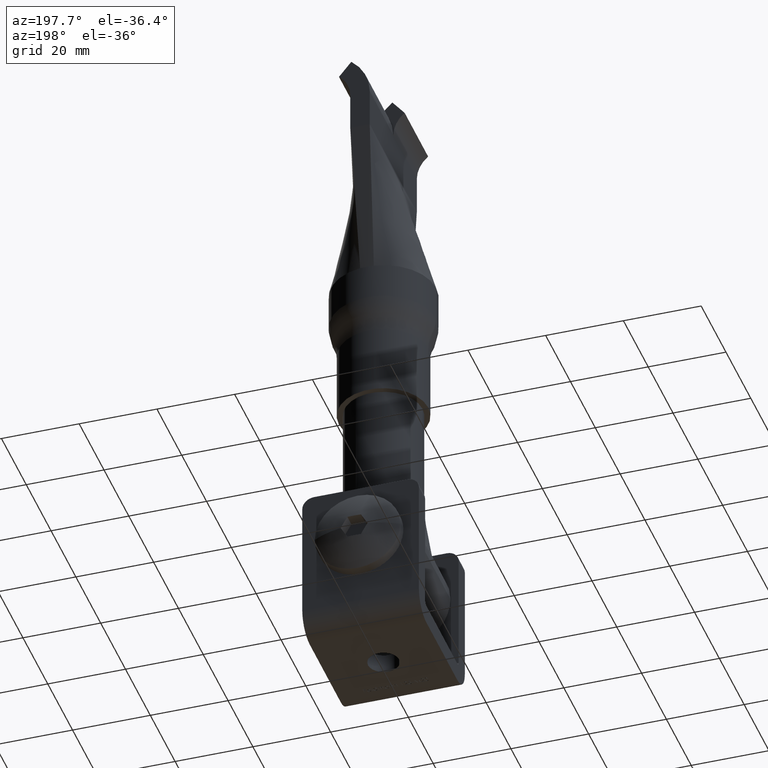
[diagram: clean part render]
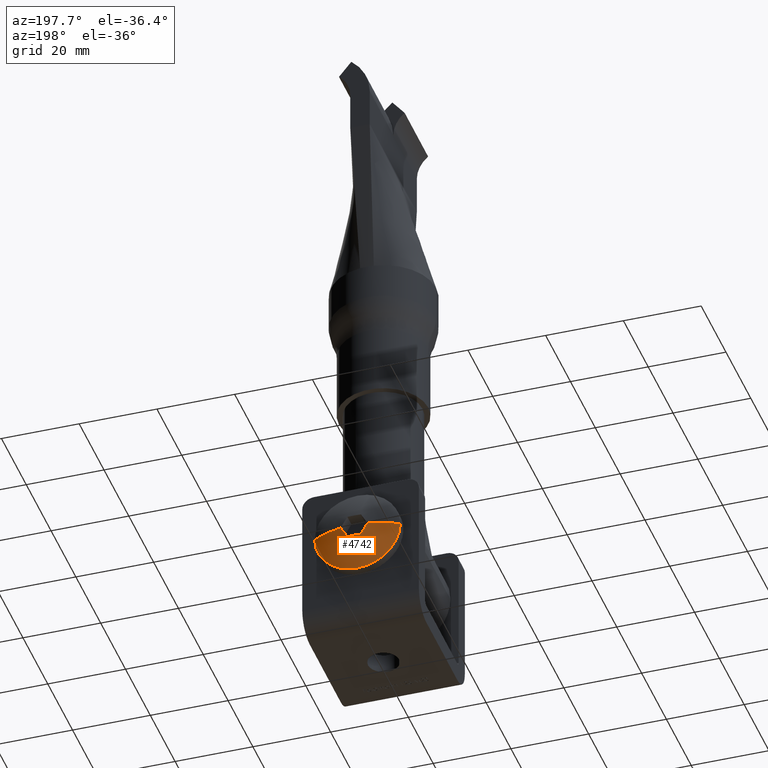
[diagram: same view with one face highlighted and labeled with its STEP entity id]
A machine part, auxiliary view. The second image highlights one B-rep face of the part: STEP entity #4742.
In plain terms, the highlighted spherical surface has radius 21.6667 mm.
Its self-contained STEP definition (entity closure, byte-faithful):
#6 = ORIENTED_EDGE ( 'NONE', *, *, #651, .F. ) ;
#651 = EDGE_CURVE ( 'NONE', #6412, #11466, #3478, .T. ) ;
#960 = CARTESIAN_POINT ( 'NONE',  ( -10.99999999999999100, 17.00000000000000400, 1.347111479062087400E-015 ) ) ;
#1243 = DIRECTION ( 'NONE',  ( -1.000000000000000000, -1.954375996074616700E-014, 2.425285620775119200E-016 ) ) ;
#1382 = CARTESIAN_POINT ( 'NONE',  ( 2.598076211353316000, -1.666666666666661900, -1.500000000000000400 ) ) ;
#1616 = DIRECTION ( 'NONE',  ( -0.0000000000000000000, -1.000000000000000000, -0.0000000000000000000 ) ) ;
#2394 = SPHERICAL_SURFACE ( 'NONE', #25682, 21.66666666666666100 ) ;
#2424 = CIRCLE ( 'NONE', #11087, 10.99999999999999100 ) ;
#2675 = ORIENTED_EDGE ( 'NONE', *, *, #20687, .F. ) ;
#2770 = DIRECTION ( 'NONE',  ( 0.8660254037844387100, 0.0000000000000000000, 0.5000000000000000000 ) ) ;
#3187 = DIRECTION ( 'NONE',  ( 2.503857664561932400E-016, 0.0000000000000000000, 1.000000000000000000 ) ) ;
#3478 = CIRCLE ( 'NONE', #17407, 21.66666666666666100 ) ;
#3570 = AXIS2_PLACEMENT_3D ( 'NONE', #5803, #23938, #19817 ) ;
#3606 = AXIS2_PLACEMENT_3D ( 'NONE', #5323, #3187, #1243 ) ;
#3651 = CARTESIAN_POINT ( 'NONE',  ( 0.0000000000000000000, 17.00000000000000000, 0.0000000000000000000 ) ) ;
#3994 = EDGE_CURVE ( 'NONE', #8254, #6412, #5890, .T. ) ;
#4221 = EDGE_CURVE ( 'NONE', #18093, #18365, #2424, .T. ) ;
#4742 = ADVANCED_FACE ( 'NONE', ( #18403 ), #2394, .T. ) ;
#4796 = VERTEX_POINT ( 'NONE', #24934 ) ;
#4897 = CARTESIAN_POINT ( 'NONE',  ( 1.732050807568877200, 19.72128425071773700, -3.000000000000000000 ) ) ;
#4945 = EDGE_LOOP ( 'NONE', ( #6, #20099, #7471, #23972, #23132, #9214, #2675 ) ) ;
#5140 = DIRECTION ( 'NONE',  ( 1.000000000000000000, 0.0000000000000000000, 0.0000000000000000000 ) ) ;
#5323 = CARTESIAN_POINT ( 'NONE',  ( -7.511572993685796100E-016, -1.666666666666661900, -2.999999999999999600 ) ) ;
#5803 = CARTESIAN_POINT ( 'NONE',  ( 0.0000000000000000000, -1.666666666666661900, 0.0000000000000000000 ) ) ;
#5843 = CIRCLE ( 'NONE', #3570, 21.66666666666666100 ) ;
#5890 = CIRCLE ( 'NONE', #22325, 21.45796925257477000 ) ;
#5951 = CIRCLE ( 'NONE', #3606, 21.45796925257476700 ) ;
#6412 = VERTEX_POINT ( 'NONE', #22965 ) ;
#7402 = EDGE_CURVE ( 'NONE', #4796, #24417, #21636, .T. ) ;
#7471 = ORIENTED_EDGE ( 'NONE', *, *, #17816, .F. ) ;
#7772 = CARTESIAN_POINT ( 'NONE',  ( 0.0000000000000000000, -1.666666666666661900, 0.0000000000000000000 ) ) ;
#7928 = DIRECTION ( 'NONE',  ( 1.000000000000000000, 0.0000000000000000000, -1.224646799147353200E-016 ) ) ;
#8254 = VERTEX_POINT ( 'NONE', #15606 ) ;
#9162 = DIRECTION ( 'NONE',  ( 0.0000000000000000000, 0.0000000000000000000, 1.000000000000000000 ) ) ;
#9214 = ORIENTED_EDGE ( 'NONE', *, *, #4221, .F. ) ;
#9909 = DIRECTION ( 'NONE',  ( -0.0000000000000000000, -1.000000000000000000, -0.0000000000000000000 ) ) ;
#10071 = DIRECTION ( 'NONE',  ( 0.0000000000000000000, 0.0000000000000000000, -1.000000000000000000 ) ) ;
#10759 = EDGE_CURVE ( 'NONE', #4796, #18365, #5843, .T. ) ;
#11087 = AXIS2_PLACEMENT_3D ( 'NONE', #3651, #1616, #15562 ) ;
#11466 = VERTEX_POINT ( 'NONE', #960 ) ;
#11726 = DIRECTION ( 'NONE',  ( 1.224646799147353200E-016, -0.0000000000000000000, 1.000000000000000000 ) ) ;
#12700 = DIRECTION ( 'NONE',  ( -0.4999999999999999400, -1.954375996074616400E-014, 0.8660254037844386000 ) ) ;
#12846 = CARTESIAN_POINT ( 'NONE',  ( 0.0000000000000000000, -1.666666666666661900, 0.0000000000000000000 ) ) ;
#13764 = DIRECTION ( 'NONE',  ( -0.5000000000000000000, -1.954375996074616400E-014, -0.8660254037844386000 ) ) ;
#13836 = DIRECTION ( 'NONE',  ( -0.8660254037844386000, -0.0000000000000000000, 0.5000000000000001100 ) ) ;
#15562 = DIRECTION ( 'NONE',  ( 0.0000000000000000000, 0.0000000000000000000, -1.000000000000000000 ) ) ;
#15606 = CARTESIAN_POINT ( 'NONE',  ( -1.732050807568877400, 19.72128425071773700, -2.999999999999999100 ) ) ;
#16290 = CIRCLE ( 'NONE', #23662, 10.99999999999999100 ) ;
#17407 = AXIS2_PLACEMENT_3D ( 'NONE', #7772, #11726, #7928 ) ;
#17816 = EDGE_CURVE ( 'NONE', #24417, #8254, #5951, .T. ) ;
#18093 = VERTEX_POINT ( 'NONE', #24730 ) ;
#18365 = VERTEX_POINT ( 'NONE', #24795 ) ;
#18403 = FACE_OUTER_BOUND ( 'NONE', #4945, .T. ) ;
#18902 = CARTESIAN_POINT ( 'NONE',  ( -2.598076211353316500, -1.666666666666661900, -1.500000000000000000 ) ) ;
#19817 = DIRECTION ( 'NONE',  ( -1.000000000000000000, 0.0000000000000000000, 0.0000000000000000000 ) ) ;
#20063 = CARTESIAN_POINT ( 'NONE',  ( 0.0000000000000000000, 17.00000000000000000, 0.0000000000000000000 ) ) ;
#20099 = ORIENTED_EDGE ( 'NONE', *, *, #3994, .F. ) ;
#20687 = EDGE_CURVE ( 'NONE', #11466, #18093, #16290, .T. ) ;
#21636 = CIRCLE ( 'NONE', #25381, 21.45796925257477000 ) ;
#22325 = AXIS2_PLACEMENT_3D ( 'NONE', #18902, #2770, #12700 ) ;
#22965 = CARTESIAN_POINT ( 'NONE',  ( -3.464101615137754800, 19.72128425071773700, -6.505213034913026600E-016 ) ) ;
#23132 = ORIENTED_EDGE ( 'NONE', *, *, #10759, .T. ) ;
#23662 = AXIS2_PLACEMENT_3D ( 'NONE', #20063, #9909, #10071 ) ;
#23938 = DIRECTION ( 'NONE',  ( 0.0000000000000000000, 0.0000000000000000000, -1.000000000000000000 ) ) ;
#23972 = ORIENTED_EDGE ( 'NONE', *, *, #7402, .F. ) ;
#24417 = VERTEX_POINT ( 'NONE', #4897 ) ;
#24730 = CARTESIAN_POINT ( 'NONE',  ( 0.0000000000000000000, 17.00000000000000000, -10.99999999999999100 ) ) ;
#24795 = CARTESIAN_POINT ( 'NONE',  ( 10.99999999999999100, 17.00000000000000400, 0.0000000000000000000 ) ) ;
#24934 = CARTESIAN_POINT ( 'NONE',  ( 3.464101615137755700, 19.72128425071773700, 6.505213034913026600E-016 ) ) ;
#25381 = AXIS2_PLACEMENT_3D ( 'NONE', #1382, #13836, #13764 ) ;
#25682 = AXIS2_PLACEMENT_3D ( 'NONE', #12846, #9162, #5140 ) ;